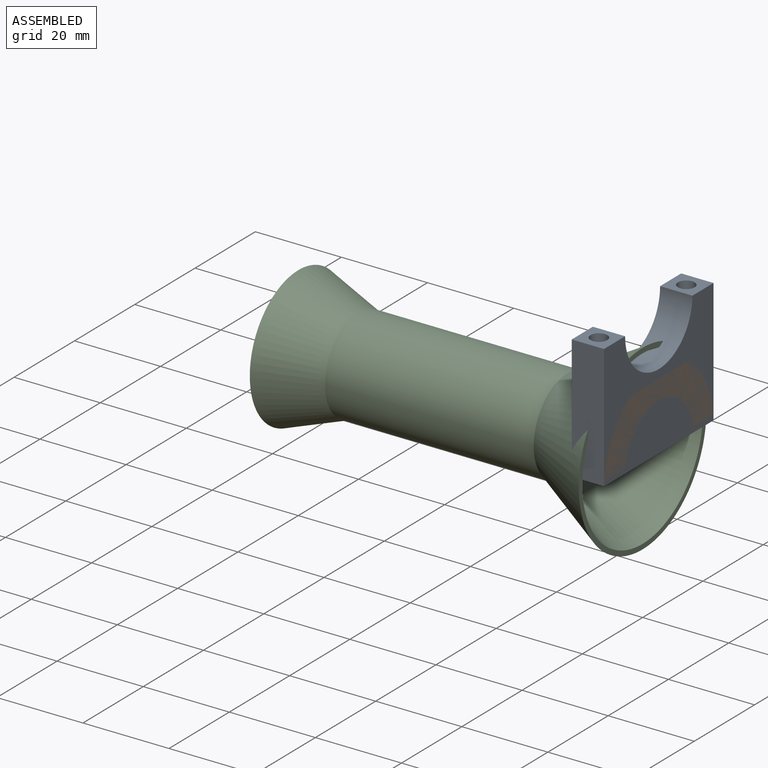
[diagram: assembled view]
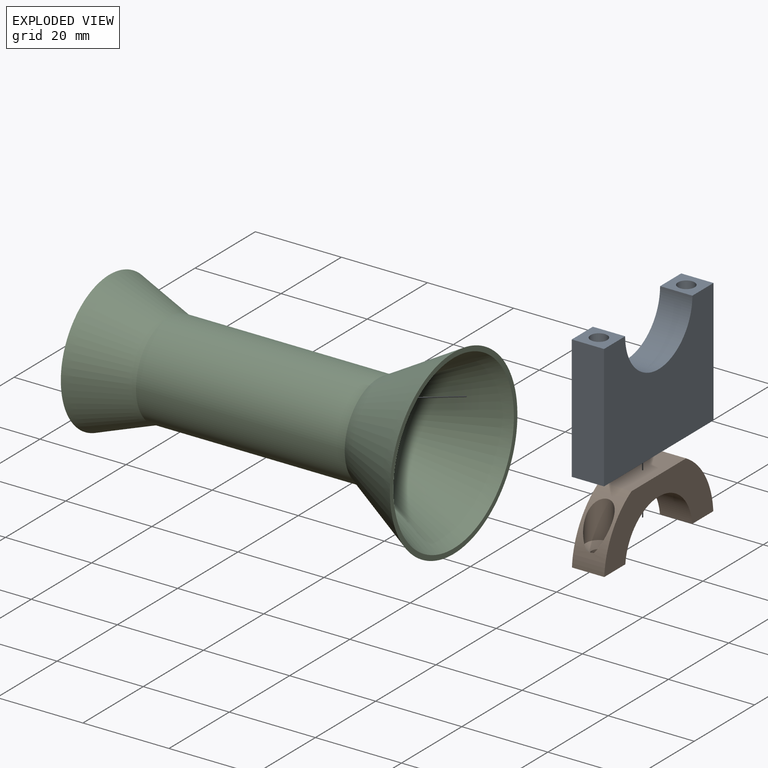
[diagram: exploded view]
GUIDED TOUR — FREECAD ASSEMBLY "Viewscope"

This assembly has 3 components, labeled P0..P2 below (a component is one placed body or linked part; the same part can appear more than once), held together by 0 modeled joints plus 3 derived contact edges. A joint is a constraint between two components; its type names the relative motion it leaves free:
  CONTACT — a derived adjacency edge — the two components touch in the source model (clearance under 2% of the assembly's diagonal); it is measured from the geometry, not a modeled constraint.
Axis/direction vectors are unit vectors and 'through' points are millimeter coordinates, both in the assembly's world frame.

MATES
  1. CONTACT "contact_0_1": P0 <-> P1, contact direction (0.000, 0.000, -1.000) through (0.00, 16.44, 4.04) mm (derived from contact, not a modeled constraint)
  2. CONTACT "contact_0_2": P0 <-> P2, contact direction (-0.960, 0.000, -0.279) through (-3.32, 3.59, 18.13) mm (derived from contact, not a modeled constraint)
  3. CONTACT "contact_1_2": P1 <-> P2, contact direction (-1.000, 0.000, 0.000) through (-2.90, -15.31, 9.90) mm (derived from contact, not a modeled constraint)

ASSEMBLY ORDER
  1. P0 — the base component [order heuristic]
  2. P1 [order heuristic]
  3. P2 [order heuristic]
Order-tag legend:
  [order heuristic] — this assembly is geometrically interlocked (no collision-free removal order exists), so components are listed in mate-graph order; insertion feasibility is not verified.

Of the 3 components, 3 carry a construction recipe — the FreeCAD feature program (sketches with constraints, then the solid features that consume them) that regenerates the part from scratch, quoted from this document or from the linked companion document it references; the rest are supplied as boundary geometry only. The tour below walks the components in assembly order: each is shown spotlighted twice — in the assembled view, then in the exploded view, where a leader line traces a displaced component back to its assembled socket (components that stay in place when exploded have no leader line; saturated green if recipe-attached, orange if geometry-only; every other component desaturated gray) — followed by its recipe or geometry summary and the mates that hold it.
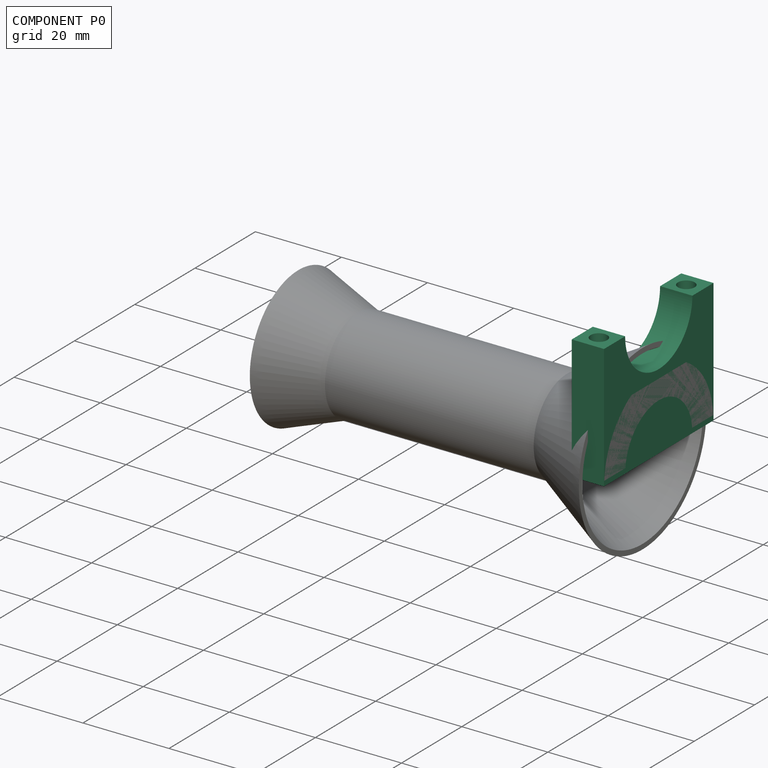
[diagram: component P0 — assembled]
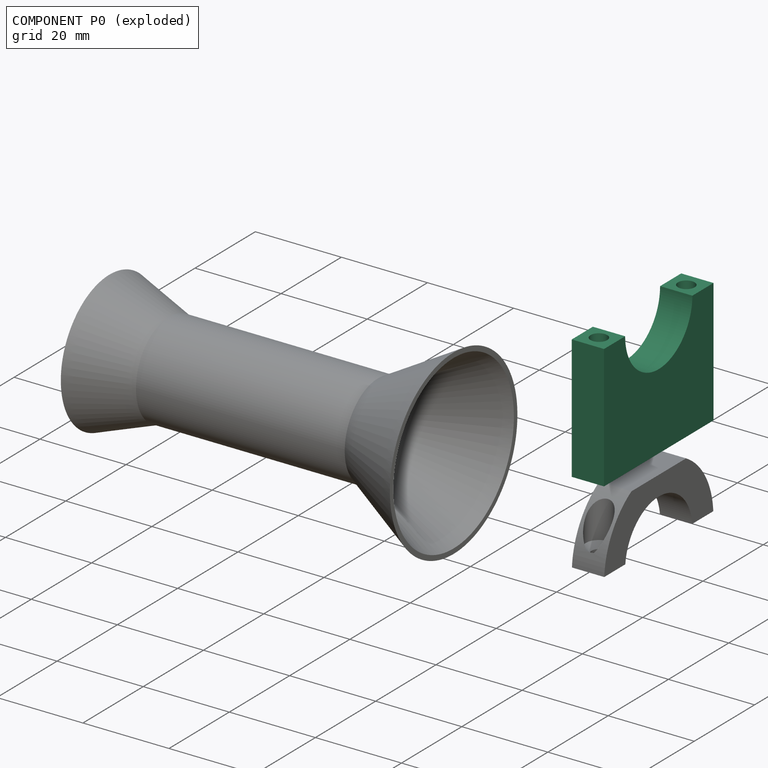
[diagram: component P0 — exploded]
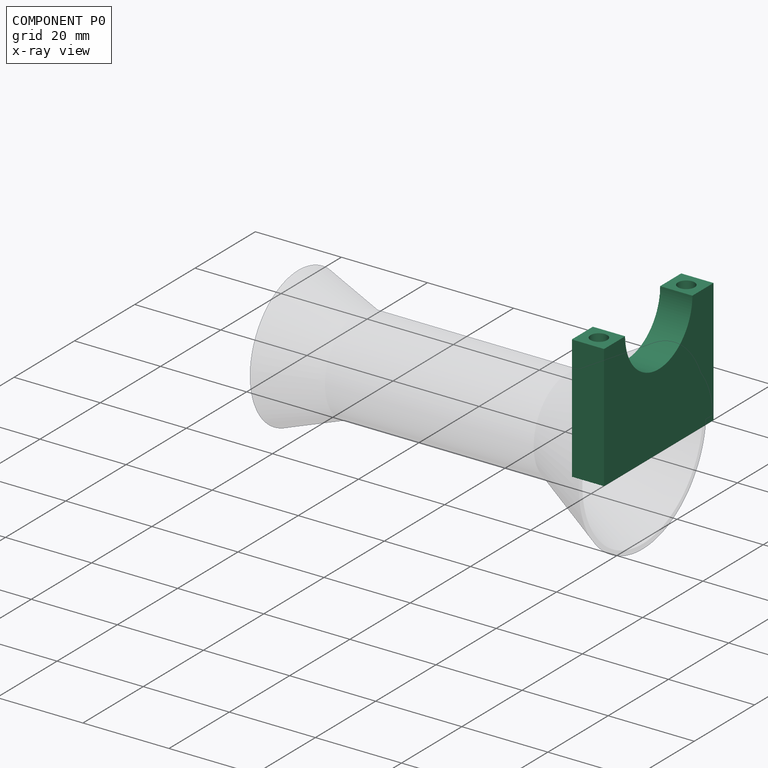
[diagram: component P0 — x-ray view]
COMPONENT P0 — recipe-attached ("CollarBottom", modeled in this document).
Held by: resting contact with P1 (derived edge); resting contact with P2 (derived edge).
Construction recipe (the document's own serialized feature program — sketch geometry with constraints, then the solid features built on it; lengths are millimeters unless a unit is written):

FEATURE [Sketcher::SketchObject] Sketch
  ArcFitTolerance = 0
  AttachmentSupport = -> [YZ_Plane009]
  FullyConstrained = true
  MakeInternals = false
  MapMode = 5
  Placement = pos=(0,0,0) rot=(0.57735,0.57735,0.57735;2.0944rad)
  expr: Constraints[15] = <<Dimensions>>.view_center_offset_hor - <<Dimensions>>.viewscope_collar_gap / 2
  expr: Constraints[16] = <<Dimensions>>.viewscope_collar_width
  expr: Constraints[8] = <<Dimensions>>.viewscope_inner_diameter / 2 + <<Dimensions>>.viewscope_wall_thickness + <<Dimensions>>.clearance_tight_fit
  sketch-geometry (6):
    g0: LineSegment StartX=-18.15 StartY=28.85 StartZ=0 EndX=-18.15 EndY=0 EndZ=0
    g1: LineSegment StartX=-18.15 StartY=28.85 StartZ=0 EndX=-11.15 EndY=28.85 EndZ=0
    g2: LineSegment StartX=18.15 StartY=0 StartZ=0 EndX=18.15 EndY=28.85 EndZ=0
    g3: LineSegment StartX=18.15 StartY=28.85 StartZ=0 EndX=11.15 EndY=28.85 EndZ=0
    g4: ArcOfCircle CenterX=0 CenterY=28.85 CenterZ=0 NormalX=0 NormalY=0 NormalZ=1 AngleXU=0 Radius=11.15 StartAngle=3.14159 EndAngle=6.28319
    g5: LineSegment StartX=-18.15 StartY=0 StartZ=0 EndX=18.15 EndY=0 EndZ=0
  constraints (19):
    c: PointOnObject(g0,g-1)
    c: Vertical(g0)
    c: Coincident(g1,g0)
    c: PointOnObject(g2,g-1)
    c: Vertical(g2)
    c: Coincident(g3,g2)
    c: PointOnObject(g4,g-2)
    c: Coincident(g4,g1)
    c: Radius(g4) = 11.15
    c: Perpendicular(g4,g1)
    c: Coincident(g4,g3)
    c: Perpendicular(g4,g3)
    c: Horizontal(g1)
    c: Horizontal(g3)
    c: Equal(g1,g3)
    c: DistanceY(g-1,g4) = 28.85
    c: DistanceX(g3,g3) = 7
    c: Coincident(g5,g0)
    c: Coincident(g2,g5)
FEATURE [PartDesign::Pad] Pad
  Direction = (1,0,0)
  Length = 7.5
  Length2 = 10
  Midplane = true
  Placement = pos=(0,0,0) rot=(1,1,1;2.0944rad)
  Profile = -> Sketch
  ReferenceAxis = -> Sketch [N_Axis]
  Suppressed = false
  Type = 0
  expr: Length = <<Dimensions>>.viewscope_collar_thickness
FEATURE [PartDesign::SubShapeBinder] Binder
  BindCopyOnChange = 0
  BindMode = 0
  ClaimChildren = false
  Context = -> HolderBottom [Body.Binder.]
  Fuse = false
  MakeFace = true
  OffsetFill = false
  OffsetIntersection = false
  OffsetJoinType = 0
  OffsetOpenResult = false
  PartialLoad = false
  Relative = true
  Support = -> [Part[Body_2.Hole.Sketch004.]]
  _Version = 2
FEATURE [PartDesign::Hole] Hole001
  BaseFeature = -> Pad
  CustomThreadClearance = 0
  Depth = 94.9755
  DepthType = 1
  Diameter = 3.4
  DrillForDepth = false
  DrillPoint = 1
  DrillPointAngle = 118
  HoleCutCountersinkAngle = 90
  HoleCutCustomValues = false
  HoleCutDepth = 4
  HoleCutDiameter = 3.9
  HoleCutType = 3
  ModelThread = false
  Placement = pos=(0,0,0) rot=(1,1,1;2.0944rad)
  Profile = -> Binder
  Reversed = true
  Suppressed = false
  Tapered = false
  TaperedAngle = 90
  ThreadClass = 0
  ThreadDepth = 94.8812
  ThreadDepthType = 0
  ThreadDirection = 0
  ThreadFit = 0
  ThreadSize = 9
  ThreadType = 1
  Threaded = false
  UseCustomThreadClearance = false
  expr: HoleCutDepth = <<Dimensions>>.viewscope_ti_L
  expr: HoleCutDiameter = <<Dimensions>>.viewscope_ti_D
  expr: ThreadSize = <<Dimensions>>.viewscope_screw_type
FEATURE [PartDesign::Hole] Hole002
  BaseFeature = -> Hole001
  CustomThreadClearance = 0
  Depth = 94.9755
  DepthType = 1
  Diameter = 3.4
  DrillForDepth = false
  DrillPoint = 1
  DrillPointAngle = 118
  HoleCutCountersinkAngle = 90
  HoleCutCustomValues = false
  HoleCutDepth = 4
  HoleCutDiameter = 3.9
  HoleCutType = 3
  ModelThread = false
  Placement = pos=(0,0,0) rot=(1,1,1;2.0944rad)
  Profile = -> Hole001 [Edge8,Edge28]
  Suppressed = false
  Tapered = false
  TaperedAngle = 90
  ThreadClass = 0
  ThreadDepth = 94.8812
  ThreadDepthType = 0
  ThreadDirection = 0
  ThreadFit = 0
  ThreadSize = 9
  ThreadType = 1
  Threaded = false
  UseCustomThreadClearance = false
  expr: HoleCutDepth = <<Dimensions>>.viewscope_ti_L
  expr: HoleCutDiameter = <<Dimensions>>.viewscope_ti_D
  expr: ThreadSize = <<Dimensions>>.viewscope_screw_type
FEATURE [PartDesign::Body] Body
  AllowCompound = false
  Group = -> [Sketch,Pad,Binder,Hole001,Hole002]
  Origin = -> Origin009
  Tip = -> Hole002
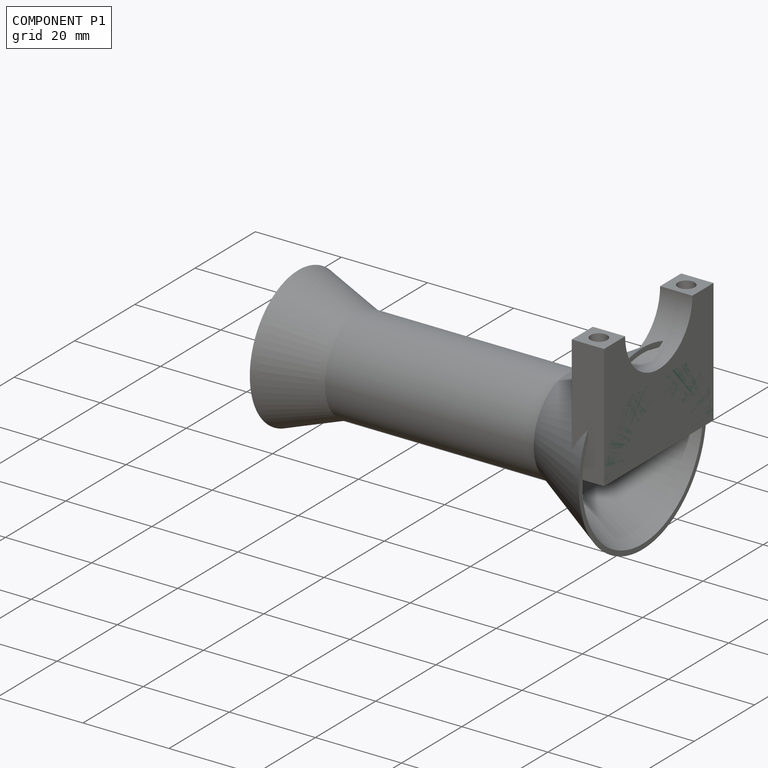
[diagram: component P1 — assembled]
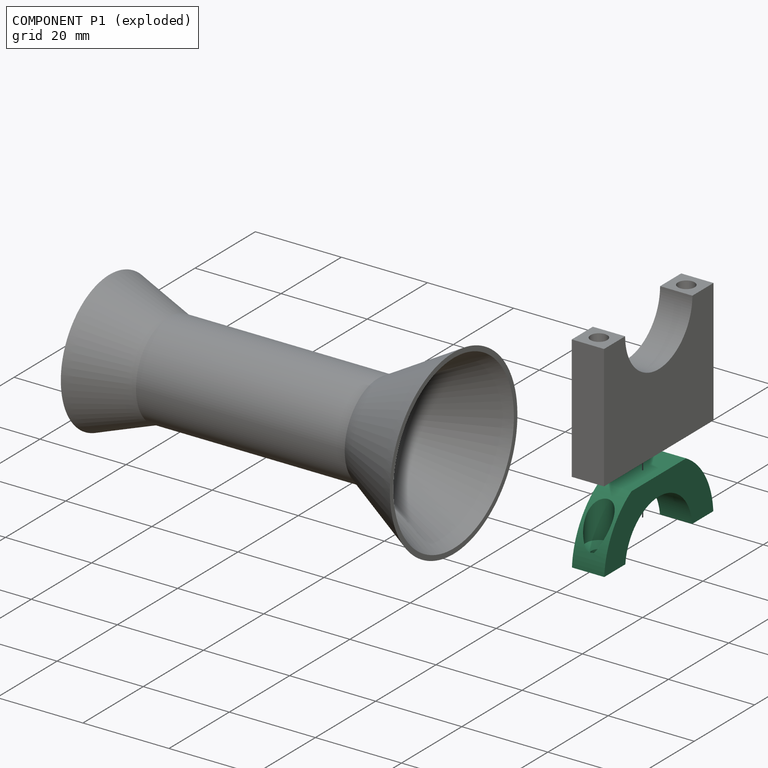
[diagram: component P1 — exploded]
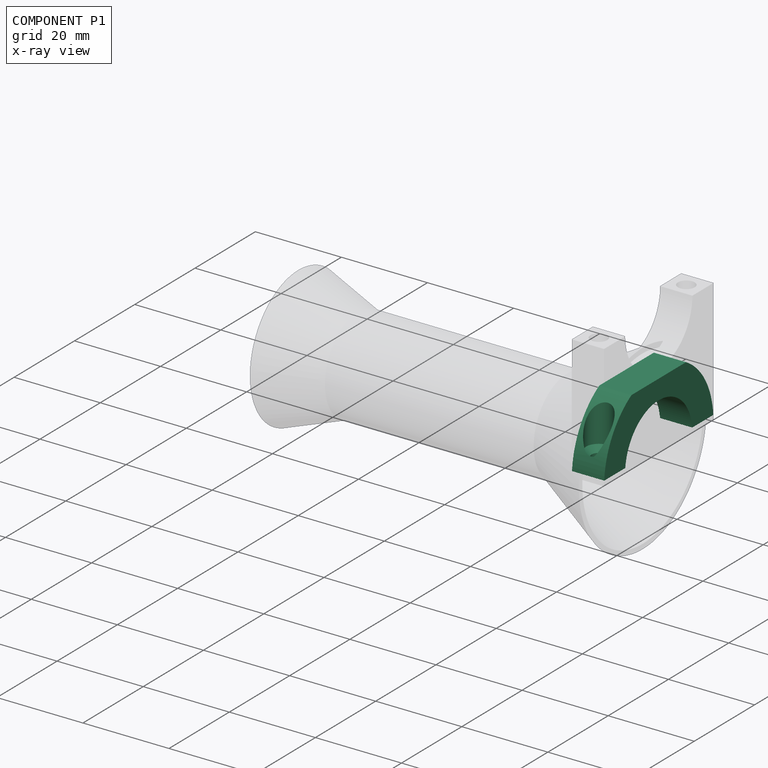
[diagram: component P1 — x-ray view]
COMPONENT P1 — recipe-attached ("CollarTop", modeled in this document).
Held by: resting contact with P0 (derived edge); resting contact with P2 (derived edge).
Construction recipe (the document's own serialized feature program — sketch geometry with constraints, then the solid features built on it; lengths are millimeters unless a unit is written):

FEATURE [Sketcher::SketchObject] Sketch003
  ArcFitTolerance = 0
  AttachmentSupport = -> [YZ_Plane011]
  FullyConstrained = true
  MakeInternals = false
  MapMode = 5
  Placement = pos=(0,0,0) rot=(0.57735,0.57735,0.57735;2.0944rad)
  expr: Constraints[3] = <<Dimensions>>.viewscope_inner_diameter / 2 + <<Dimensions>>.viewscope_wall_thickness + <<Dimensions>>.clearance_tight_fit
  expr: Constraints[4] = <<Dimensions>>.viewscope_collar_width
  expr: Constraints[8] = <<Dimensions>>.viewscope_collar_gap / 2
  sketch-geometry (7):
    g0: ArcOfCircle CenterX=0 CenterY=0 CenterZ=0 NormalX=0 NormalY=0 NormalZ=1 AngleXU=0 Radius=11.15 StartAngle=0.103323 EndAngle=3.03827
    g1: LineSegment StartX=-18.0905 StartY=1.15 StartZ=0 EndX=-11.0905 EndY=1.15 EndZ=0
    g2: LineSegment StartX=11.0905 StartY=1.15 StartZ=0 EndX=18.0905 EndY=1.15 EndZ=0
    g3: ArcOfCircle CenterX=0 CenterY=0 CenterZ=0 NormalX=0 NormalY=0 NormalZ=1 AngleXU=0 Radius=18.1271 StartAngle=0.0634837 EndAngle=1.0472
    g4: LineSegment StartX=-9.06353 StartY=15.6985 StartZ=0 EndX=9.06353 EndY=15.6985 EndZ=0
    g5: ArcOfCircle CenterX=0 CenterY=0 CenterZ=0 NormalX=0 NormalY=0 NormalZ=1 AngleXU=0 Radius=18.1271 StartAngle=2.0944 EndAngle=3.07811
    g6: LineSegment [constr] StartX=-9.06353 StartY=15.6985 StartZ=0 EndX=0 EndY=20.9313 EndZ=0
  constraints (20):
    c: Coincident(g0,g-1)
    c: Horizontal(g1)
    c: Coincident(g2,g0)
    c: Radius(g0) = 11.15
    c: Distance(g1) = 7
    c: Coincident(g3,g0)
    c: Coincident(g5,g1)
    c: Coincident(g3,g2)
    c: DistanceY(g0,g1) = 1.15
    c: Tangent(g2,g1)
    c: Coincident(g1,g0)
    c: Horizontal(g4)
    c: Equal(g3,g5)
    c: Coincident(g3,g4)
    c: Coincident(g5,g4)
    c: Coincident(g3,g5)
    c: Coincident(g6,g4)
    c: PointOnObject(g6,g-2)
    c: Tangent(g5,g6)
    c: Angle(g4,g6) = 0.523599
FEATURE [PartDesign::Pad] Pad001
  Direction = (1,0,0)
  Length = 7.5
  Length2 = 10
  Midplane = true
  Placement = pos=(0,0,0) rot=(1,1,1;2.0944rad)
  Profile = -> Sketch003
  ReferenceAxis = -> Sketch003 [N_Axis]
  Suppressed = false
  Type = 0
  expr: Length = <<Dimensions>>.viewscope_collar_thickness
FEATURE [Sketcher::SketchObject] Sketch004
  ArcFitTolerance = 0
  AttachmentSupport = -> [XY_Plane011]
  FullyConstrained = true
  MakeInternals = false
  MapMode = 5
  expr: .Constraints.hole_distance = <<Dimensions>>.viewscope_inner_diameter + 2 * <<Dimensions>>.viewscope_wall_thickness + <<Dimensions>>.viewscope_collar_width
  expr: Constraints[1] = <<Dimensions>>.viewscope_screw_diameter
  sketch-geometry (2):
    g0: Circle CenterX=0 CenterY=14.5 CenterZ=0 NormalX=0 NormalY=0 NormalZ=1 AngleXU=0 Radius=1.5
    g1: Circle CenterX=0 CenterY=-14.5 CenterZ=0 NormalX=0 NormalY=0 NormalZ=1 AngleXU=0 Radius=1.5
  constraints (5):
    c: Equal(g0,g1)
    c: Diameter(g0) = 3
    c: PointOnObject(g1,g-2)
    c: Distance(g0,g1) = 29  'hole_distance'
    c: Symmetric(g1,g0,g-1)
FEATURE [PartDesign::SubShapeBinder] Binder001
  BindCopyOnChange = 0
  BindMode = 0
  ClaimChildren = false
  Context = -> <external Sextant.FCStd>#Assembly [Viewscope.CollarTop.Body_2.Binder001.]
  Fuse = false
  MakeFace = true
  OffsetFill = false
  OffsetIntersection = false
  OffsetJoinType = 0
  OffsetOpenResult = false
  PartialLoad = false
  Placement = pos=(0,0,18) rot=(0,0,1;0rad)
  Relative = true
  Support = -> [Sketch004]
  _Version = 2
  expr: .Placement.Base.z = <<Dimensions>>.viewscope_collar_outer_diameter / 2
FEATURE [PartDesign::Hole] Hole
  BaseFeature = -> Pad001
  CustomThreadClearance = 0
  Depth = 82.1542
  DepthType = 1
  Diameter = 3.4
  DrillForDepth = false
  DrillPoint = 1
  DrillPointAngle = 90
  HoleCutCountersinkAngle = 90
  HoleCutCustomValues = false
  HoleCutDepth = 12.85
  HoleCutDiameter = 6
  HoleCutType = 3
  ModelThread = false
  Placement = pos=(0,0,0) rot=(1,1,1;2.0944rad)
  Profile = -> Binder001
  Suppressed = false
  Tapered = false
  TaperedAngle = 90
  ThreadClass = 0
  ThreadDepth = 82.034
  ThreadDepthType = 0
  ThreadDirection = 0
  ThreadFit = 0
  ThreadSize = 9
  ThreadType = 1
  Threaded = false
  UseCustomThreadClearance = false
  expr: HoleCutDepth = <<Dimensions>>.viewscope_collar_outer_diameter / 2 - <<Dimensions>>.viewscope_collar_gap / 2 - <<Dimensions>>.viewscope_screwhead_support_thickness
  expr: HoleCutDiameter = <<Dimensions>>.viewscope_screw_head_diameter + 2 * <<Dimensions>>.clearance_loose_fit
  expr: ThreadSize = <<Dimensions>>.viewscope_screw_type
FEATURE [PartDesign::Body] Body_2  label="CollarBottomBody"
  AllowCompound = false
  Group = -> [Sketch003,Pad001,Sketch004,Binder001,Hole]
  Origin = -> Origin011
  Tip = -> Hole
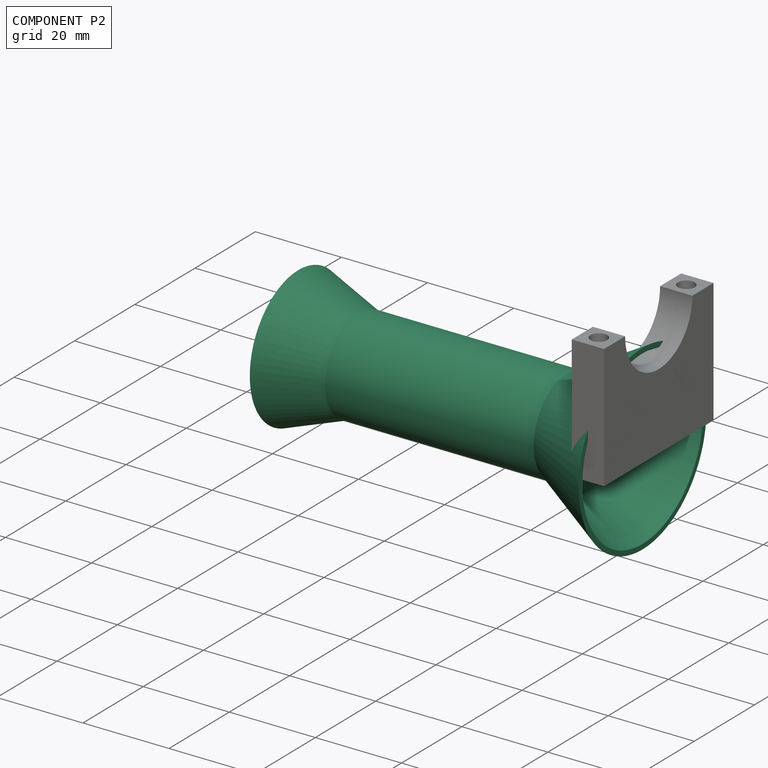
[diagram: component P2 — assembled]
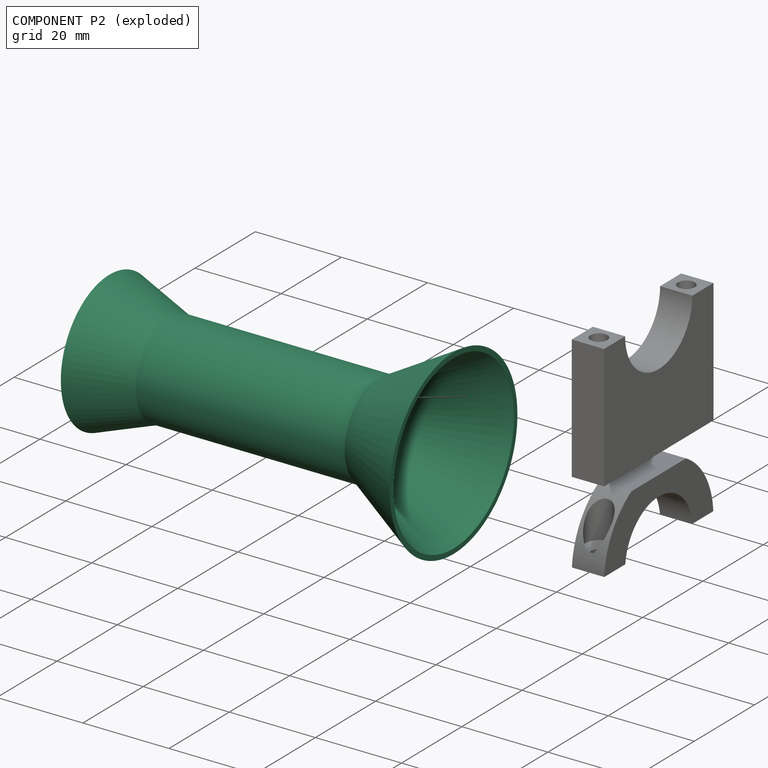
[diagram: component P2 — exploded]
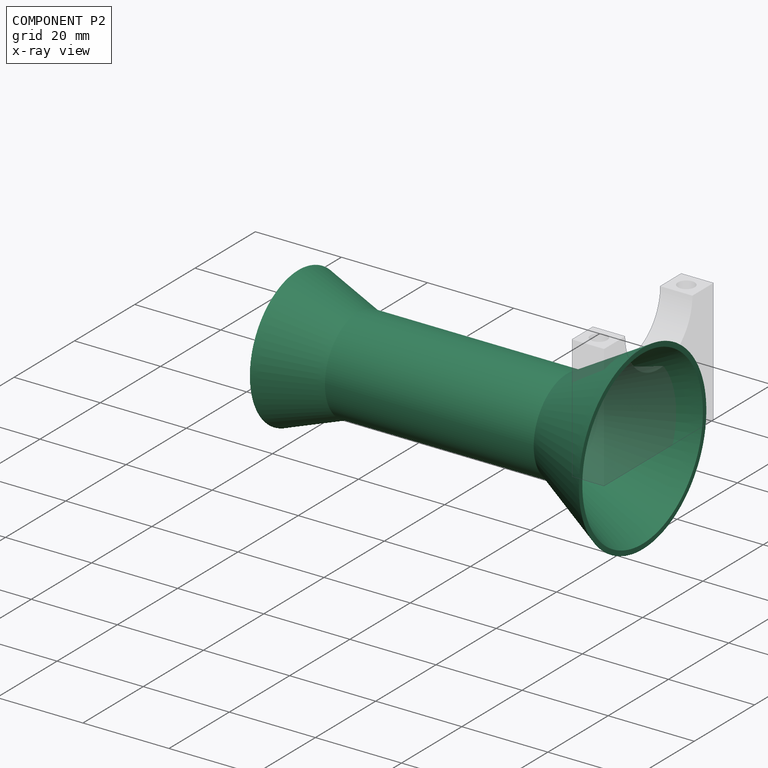
[diagram: component P2 — x-ray view]
COMPONENT P2 — recipe-attached ("Viewscope", modeled in this document).
Held by: resting contact with P0 (derived edge); resting contact with P1 (derived edge).
Construction recipe (the document's own serialized feature program — sketch geometry with constraints, then the solid features built on it; lengths are millimeters unless a unit is written):

FEATURE [Sketcher::SketchObject] Sketch002
  ArcFitTolerance = 0
  AttachmentSupport = -> [XZ_Plane007]
  FullyConstrained = true
  MakeInternals = false
  MapMode = 5
  Placement = pos=(0,0,0) rot=(1,0,0;1.5708rad)
  expr: Constraints[30] = <<Dimensions>>.viewscope_wall_thickness
  expr: Constraints[35] = <<Dimensions>>.viewscope_inner_diameter / 2
  expr: Constraints[8] = <<Dimensions>>.viewscope_eye_diameter / 2
  sketch-geometry (12):
    g0: LineSegment StartX=-66.0863 StartY=11 StartZ=0 EndX=-17.5885 EndY=11 EndZ=0
    g1: LineSegment StartX=-17.5885 StartY=11 StartZ=0 EndX=0 EndY=21.1547 EndZ=0
    g2: LineSegment StartX=-66.2626 StartY=10 StartZ=0 EndX=-17.3205 EndY=10 EndZ=0
    g3: LineSegment StartX=-17.3205 StartY=10 StartZ=0 EndX=0 EndY=20 EndZ=0
    g4: LineSegment StartX=0 StartY=21.1547 StartZ=0 EndX=0 EndY=20 EndZ=0
    g5: LineSegment [constr] StartX=0 StartY=20 StartZ=0 EndX=-0.5 EndY=20.866 EndZ=0
    g6: LineSegment StartX=-66.0863 StartY=11 StartZ=0 EndX=-80 EndY=16.0642 EndZ=0
    g7: LineSegment StartX=-66.2626 StartY=10 StartZ=0 EndX=-80 EndY=15 EndZ=0
    g8: LineSegment StartX=-80 StartY=16.0642 StartZ=0 EndX=-80 EndY=15 EndZ=0
    g9: LineSegment [constr] StartX=-80 StartY=15 StartZ=0 EndX=-80 EndY=0 EndZ=0
    g10: LineSegment [constr] StartX=-66.0863 StartY=11 StartZ=0 EndX=-66.0863 EndY=10 EndZ=0
    g11: LineSegment [constr] StartX=-80 StartY=15 StartZ=0 EndX=-79.658 EndY=15.9397 EndZ=0
  constraints (36):
    c: Horizontal(g0)
    c: Coincident(g1,g0)
    c: Horizontal(g2)
    c: Coincident(g3,g2)
    c: Coincident(g4,g1)
    c: Coincident(g4,g3)
    c: Vertical(g4)
    c: PointOnObject(g3,g-2)
    c: Distance(g-1,g3) = 20
    c: Angle(g3,g-2) = 1.0472
    c: Coincident(g5,g3)
    c: PointOnObject(g5,g1)
    c: Perpendicular(g1,g5)
    c: Parallel(g1,g3)
    c: Coincident(g6,g0)
    c: Coincident(g8,g6)
    c: Coincident(g8,g7)
    c: DistanceX(g6,g1) = 80
    c: Coincident(g7,g2)
    c: Vertical(g8)
    c: Coincident(g9,g8)
    c: Vertical(g9)
    c: Angle(g9,g7) = 1.22173
    c: Parallel(g6,g7)
    c: Coincident(g10,g0)
    c: Coincident(g11,g7)
    c: PointOnObject(g11,g6)
    c: Perpendicular(g6,g11)
    c: PointOnObject(g10,g2)
    c: Perpendicular(g2,g10)
    c: Distance(g10) = 1
    c: Equal(g10,g11)
    c: Equal(g10,g5)
    c: DistanceY(g9,g9) = 15
    c: PointOnObject(g9,g-1)
    c: DistanceY(g2) = 10
FEATURE [PartDesign::Revolution] Revolution
  Angle = 360
  Angle2 = 60
  Axis = (1,0,0)
  Base = (0,0,0)
  Placement = pos=(0,0,0) rot=(1,0,0;1.5708rad)
  Profile = -> Sketch002
  ReferenceAxis = -> Sketch002 [H_Axis]
  Suppressed = false
  Type = 0
FEATURE [PartDesign::Body] Body002
  AllowCompound = false
  Group = -> [Sketch002,Revolution]
  Origin = -> Origin007
  Tip = -> Revolution
PROVENANCE & LICENSES
Assembly and component geometry: a FreeCAD (.FCStd) document from a public repository crawl; components, placements and joints were extracted with FreeCAD and each solid tessellated.
Construction recipes: the document's own serialized feature recipes (and, for linked parts, the recipes of companion documents from the same project).
License: gpl-3.0.
Joints: native FreeCAD joints and A2plus constraints are mapped to standard mate types; edges marked 'derived from contact' connect touching components and are measured from the geometry, not modeled.
Verification: 3 of this assembly's 3 components carry a construction recipe (3 from this document itself); the rest are geometry-only. Every component's tessellation passed the extraction mesh gates (mesh-volume checksum against the B-rep where available, bounding-box inflation <= 2%).
Renders: orthographic iso camera (az 35 / el 25); the floor grid conveys scale (grid pitch printed in each image; no ruler). In the exploded view each component is displaced by its stored offset vector: the offsets alone carry the explosion direction (mate normal/axis signs are not orientation cues and do not encode it), and separation distances are assigned per mate-chain, not proportionally to assembly-order depth.
